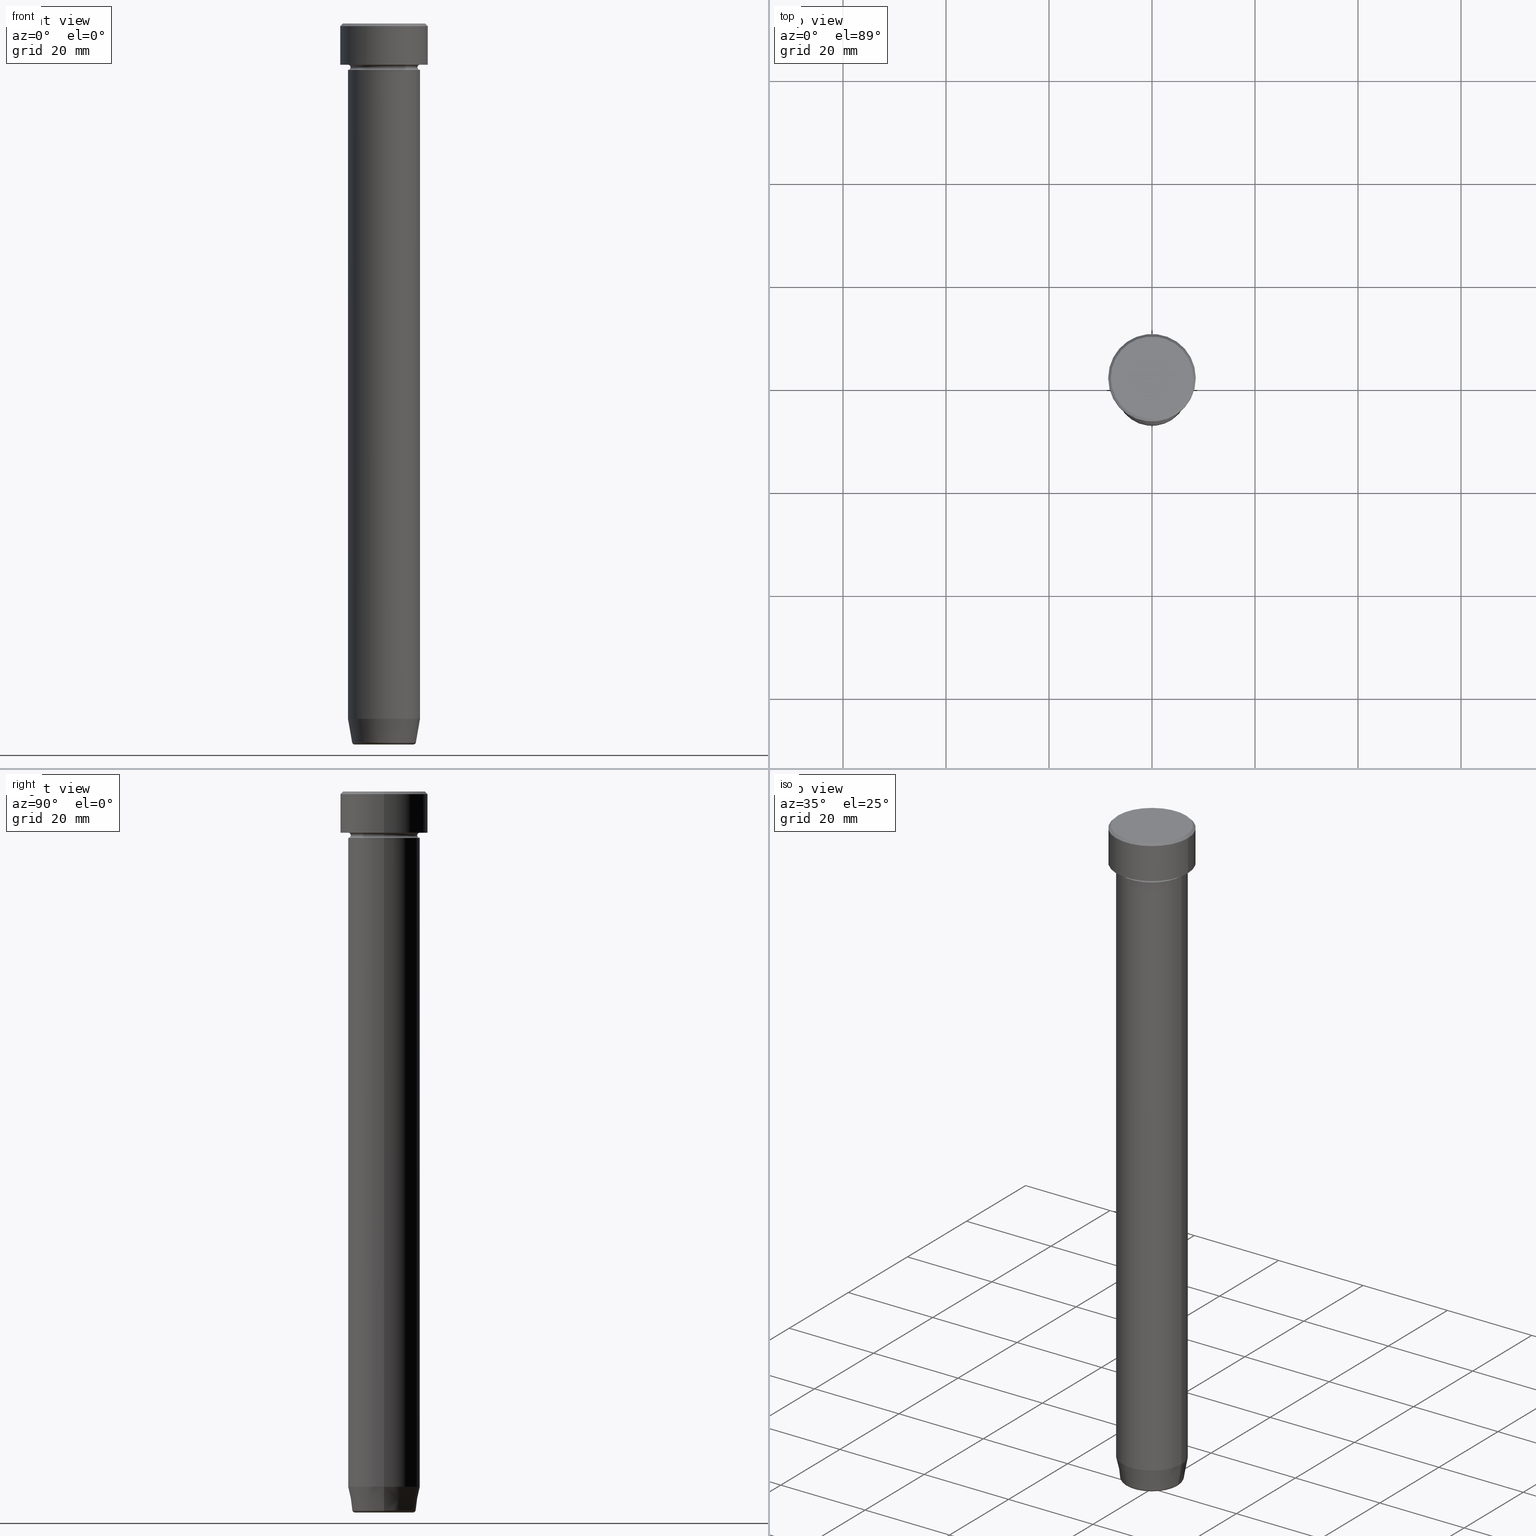
[diagram: canonical four-view strip — front | top / right | iso, engineering-drawing reading convention]
A machine part, canonical four-view strip (front | top / right | iso — engineering-drawing reading convention). The complete STEP part file that produces these views, byte-faithful:
ISO-10303-21;
HEADER;
FILE_DESCRIPTION (( 'STEP AP203' ),
    '1' );
FILE_NAME ('fa07.STEP',
    '2024-01-02T23:19:27',
    ( '' ),
    ( '' ),
    'SwSTEP 2.0',
    'SolidWorks 2019',
    '' );
FILE_SCHEMA (( 'CONFIG_CONTROL_DESIGN' ));
ENDSEC;

DATA;
#1 = CARTESIAN_POINT ( 'NONE',  ( 0.000000000000000000, 0.000000000000000000, -0.4999999999999987232 ) ) ;
#2 = COORDINATED_UNIVERSAL_TIME_OFFSET ( 1, 0, .AHEAD. ) ;
#3 = ORIENTED_EDGE ( 'NONE', *, *, #65, .F. ) ;
#4 = CARTESIAN_POINT ( 'NONE',  ( 8.500000000000000000, 0.000000000000000000, -8.000000000000000000 ) ) ;
#5 = ORIENTED_EDGE ( 'NONE', *, *, #293, .T. ) ;
#6 = CIRCLE ( 'NONE', #197, 6.500000000000000888 ) ;
#7 = DIRECTION ( 'NONE',  ( 1.000000000000000000, 0.000000000000000000, 0.000000000000000000 ) ) ;
#8 = AXIS2_PLACEMENT_3D ( 'NONE', #160, #349, #353 ) ;
#9 = ORIENTED_EDGE ( 'NONE', *, *, #134, .T. ) ;
#10 = CARTESIAN_POINT ( 'NONE',  ( 0.000000000000000000, 0.000000000000000000, -139.9999999999999716 ) ) ;
#11 = CARTESIAN_POINT ( 'NONE',  ( 0.000000000000000000, 0.000000000000000000, -22.00000000000000000 ) ) ;
#12 = APPROVAL ( #239, 'NEUR�EN�' ) ;
#13 = EDGE_LOOP ( 'NONE', ( #577, #456 ) ) ;
#14 = CARTESIAN_POINT ( 'NONE',  ( 7.000000000000000000, 0.000000000000000000, -9.000000000000001776 ) ) ;
#15 = AXIS2_PLACEMENT_3D ( 'NONE', #530, #149, #350 ) ;
#16 = PRODUCT_DEFINITION_FORMATION_WITH_SPECIFIED_SOURCE ( 'LIBOVOLN�', '', #211, .NOT_KNOWN. ) ;
#17 = VERTEX_POINT ( 'NONE', #201 ) ;
#18 = CARTESIAN_POINT ( 'NONE',  ( -5.698815280869040656, 7.280546308273771592E-16, -139.9999999999999716 ) ) ;
#19 = CARTESIAN_POINT ( 'NONE',  ( 7.000000000000000888, 8.572527594031474176E-16, -8.000000000000000000 ) ) ;
#20 = ORIENTED_EDGE ( 'NONE', *, *, #491, .T. ) ;
#21 = DIRECTION ( 'NONE',  ( -0.000000000000000000, -0.000000000000000000, 1.000000000000000000 ) ) ;
#22 = DIRECTION ( 'NONE',  ( -1.000000000000000000, 0.000000000000000000, 0.000000000000000000 ) ) ;
#23 = AXIS2_PLACEMENT_3D ( 'NONE', #318, #78, #228 ) ;
#24 = CONICAL_SURFACE ( 'NONE', #33, 6.118365096457679009, 0.1745329251994318653 ) ;
#25 = ORIENTED_EDGE ( 'NONE', *, *, #472, .F. ) ;
#26 = DIRECTION ( 'NONE',  ( -0.000000000000000000, -0.000000000000000000, 1.000000000000000000 ) ) ;
#27 = PERSON_AND_ORGANIZATION ( #163, #581 ) ;
#28 = CARTESIAN_POINT ( 'NONE',  ( 0.000000000000000000, 0.000000000000000000, -8.500000000000000000 ) ) ;
#29 = ADVANCED_FACE ( 'NONE', ( #296 ), #427, .F. ) ;
#30 = DIRECTION ( 'NONE',  ( 0.000000000000000000, 0.000000000000000000, -1.000000000000000000 ) ) ;
#31 = EDGE_CURVE ( 'NONE', #133, #563, #317, .T. ) ;
#32 = ORIENTED_EDGE ( 'NONE', *, *, #406, .F. ) ;
#33 = AXIS2_PLACEMENT_3D ( 'NONE', #582, #538, #101 ) ;
#34 = CYLINDRICAL_SURFACE ( 'NONE', #244, 6.999999999999999112 ) ;
#35 = EDGE_CURVE ( 'NONE', #527, #226, #125, .T. ) ;
#36 = ORIENTED_EDGE ( 'NONE', *, *, #235, .F. ) ;
#37 = DIRECTION ( 'NONE',  ( -0.000000000000000000, -0.000000000000000000, 1.000000000000000000 ) ) ;
#38 = DATE_AND_TIME ( #358, #108 ) ;
#39 = ORIENTED_EDGE ( 'NONE', *, *, #45, .F. ) ;
#40 = AXIS2_PLACEMENT_3D ( 'NONE', #433, #198, #525 ) ;
#41 = DATE_AND_TIME ( #121, #523 ) ;
#42 = FACE_OUTER_BOUND ( 'NONE', #474, .T. ) ;
#43 = APPROVAL_ROLE ( '' ) ;
#44 = DIRECTION ( 'NONE',  ( 0.000000000000000000, 0.000000000000000000, -1.000000000000000000 ) ) ;
#45 = EDGE_CURVE ( 'NONE', #527, #217, #520, .T. ) ;
#46 = AXIS2_PLACEMENT_3D ( 'NONE', #301, #63, #254 ) ;
#47 = AXIS2_PLACEMENT_3D ( 'NONE', #28, #37, #455 ) ;
#48 = CARTESIAN_POINT ( 'NONE',  ( -6.118365096457679009, 7.492836231391783526E-16, -139.9999999999999716 ) ) ;
#49 = CIRCLE ( 'NONE', #489, 7.000000000000000000 ) ;
#50 = EDGE_CURVE ( 'NONE', #586, #166, #70, .T. ) ;
#51 = CARTESIAN_POINT ( 'NONE',  ( -6.999999999999999112, 8.572527594031472204E-16, -22.00000000000000000 ) ) ;
#52 = EDGE_LOOP ( 'NONE', ( #405, #336 ) ) ;
#53 = CARTESIAN_POINT ( 'NONE',  ( 6.191219157375146942, 0.000000000000000000, -139.5868240888334526 ) ) ;
#54 = EDGE_CURVE ( 'NONE', #310, #264, #170, .T. ) ;
#55 = DIRECTION ( 'NONE',  ( 0.000000000000000000, -0.000000000000000000, 1.000000000000000000 ) ) ;
#56 = CARTESIAN_POINT ( 'NONE',  ( 0.000000000000000000, 0.000000000000000000, -22.00000000000000000 ) ) ;
#57 = DIRECTION ( 'NONE',  ( -0.000000000000000000, -0.000000000000000000, 1.000000000000000000 ) ) ;
#58 = CIRCLE ( 'NONE', #481, 0.5000000000000004441 ) ;
#59 = VECTOR ( 'NONE', #529, 1000.000000000000000 ) ;
#60 = EDGE_LOOP ( 'NONE', ( #589, #557, #412, #351 ) ) ;
#61 = CARTESIAN_POINT ( 'NONE',  ( 0.000000000000000000, 0.000000000000000000, -139.5868240888334526 ) ) ;
#62 = LINE ( 'NONE', #539, #279 ) ;
#63 = DIRECTION ( 'NONE',  ( -0.000000000000000000, -0.000000000000000000, 1.000000000000000000 ) ) ;
#64 = CC_DESIGN_PERSON_AND_ORGANIZATION_ASSIGNMENT ( #85, #282, ( #459 ) ) ;
#65 = EDGE_CURVE ( 'NONE', #541, #274, #145, .T. ) ;
#66 = CARTESIAN_POINT ( 'NONE',  ( 0.000000000000000000, 0.000000000000000000, 0.000000000000000000 ) ) ;
#67 = ORIENTED_EDGE ( 'NONE', *, *, #223, .F. ) ;
#68 = DIRECTION ( 'NONE',  ( 1.000000000000000000, 0.000000000000000000, 0.000000000000000000 ) ) ;
#69 = CARTESIAN_POINT ( 'NONE',  ( -7.000000000000000888, 0.000000000000000000, -8.500000000000000000 ) ) ;
#70 = CIRCLE ( 'NONE', #208, 5.698815280869040656 ) ;
#71 = CIRCLE ( 'NONE', #414, 6.999999999999999112 ) ;
#72 = CC_DESIGN_SECURITY_CLASSIFICATION ( #459, ( #16 ) ) ;
#73 = EDGE_CURVE ( 'NONE', #568, #278, #93, .T. ) ;
#74 = ORIENTED_EDGE ( 'NONE', *, *, #235, .T. ) ;
#75 = DIRECTION ( 'NONE',  ( 1.224646799147353207E-16, 1.000000000000000000, 0.000000000000000000 ) ) ;
#76 = ADVANCED_FACE ( 'NONE', ( #558 ), #566, .F. ) ;
#77 = EDGE_LOOP ( 'NONE', ( #86, #575, #385, #387 ) ) ;
#78 = DIRECTION ( 'NONE',  ( -0.000000000000000000, -0.000000000000000000, 1.000000000000000000 ) ) ;
#79 = AXIS2_PLACEMENT_3D ( 'NONE', #1, #190, #91 ) ;
#80 = ORIENTED_EDGE ( 'NONE', *, *, #475, .T. ) ;
#81 = CC_DESIGN_DATE_AND_TIME_ASSIGNMENT ( #464, #361, ( #459 ) ) ;
#82 = CARTESIAN_POINT ( 'NONE',  ( 0.000000000000000000, 0.000000000000000000, -139.9999999999999716 ) ) ;
#83 = APPLICATION_PROTOCOL_DEFINITION ( 'international standard', 'config_control_design', 1994, #96 ) ;
#84 = EDGE_LOOP ( 'NONE', ( #531, #430, #331, #555 ) ) ;
#85 = PERSON_AND_ORGANIZATION ( #163, #581 ) ;
#86 = ORIENTED_EDGE ( 'NONE', *, *, #407, .T. ) ;
#87 = AXIS2_PLACEMENT_3D ( 'NONE', #508, #131, #263 ) ;
#88 = DIRECTION ( 'NONE',  ( -0.000000000000000000, -0.000000000000000000, 1.000000000000000000 ) ) ;
#89 = SECURITY_CLASSIFICATION_LEVEL ( 'unclassified' ) ;
#90 = EDGE_LOOP ( 'NONE', ( #39, #291, #267, #67 ) ) ;
#91 = DIRECTION ( 'NONE',  ( 1.000000000000000000, 0.000000000000000000, 0.000000000000000000 ) ) ;
#92 = DIRECTION ( 'NONE',  ( -1.000000000000000000, 0.000000000000000000, 0.000000000000000000 ) ) ;
#93 = CIRCLE ( 'NONE', #126, 6.999999999999999112 ) ;
#94 = VECTOR ( 'NONE', #363, 1000.000000000000000 ) ;
#95 = DIRECTION ( 'NONE',  ( -1.000000000000000000, -1.224646799147351482E-16, 0.000000000000000000 ) ) ;
#96 = APPLICATION_CONTEXT ( 'configuration controlled 3d designs of mechanical parts and assemblies' ) ;
#97 = EDGE_LOOP ( 'NONE', ( #196, #480 ) ) ;
#98 = CARTESIAN_POINT ( 'NONE',  ( 6.118365096457679009, 0.000000000000000000, -139.9999999999999716 ) ) ;
#99 = DIRECTION ( 'NONE',  ( -0.000000000000000000, -0.000000000000000000, 1.000000000000000000 ) ) ;
#100 = EDGE_LOOP ( 'NONE', ( #492, #306 ) ) ;
#101 = DIRECTION ( 'NONE',  ( 1.000000000000000000, 0.000000000000000000, 0.000000000000000000 ) ) ;
#102 = FACE_OUTER_BOUND ( 'NONE', #52, .T. ) ;
#103 = ORIENTED_EDGE ( 'NONE', *, *, #471, .F. ) ;
#104 = CARTESIAN_POINT ( 'NONE',  ( 6.999999999999999112, 0.000000000000000000, -22.00000000000000000 ) ) ;
#105 = DIRECTION ( 'NONE',  ( -0.000000000000000000, -0.000000000000000000, 1.000000000000000000 ) ) ;
#106 = AXIS2_PLACEMENT_3D ( 'NONE', #483, #113, #156 ) ;
#107 = ADVANCED_FACE ( 'NONE', ( #334 ), #114, .F. ) ;
#108 = LOCAL_TIME ( 0, 19, 27.00000000000000000, #417 ) ;
#109 = EDGE_LOOP ( 'NONE', ( #323, #32, #20, #249 ) ) ;
#110 = DIRECTION ( 'NONE',  ( 1.000000000000000000, 0.000000000000000000, 0.000000000000000000 ) ) ;
#111 = CARTESIAN_POINT ( 'NONE',  ( -6.999999999999999112, 8.572527594031472204E-16, -22.00000000000000000 ) ) ;
#112 = CARTESIAN_POINT ( 'NONE',  ( 0.000000000000000000, 0.000000000000000000, -134.9999999999999716 ) ) ;
#113 = DIRECTION ( 'NONE',  ( 0.000000000000000000, 0.000000000000000000, -1.000000000000000000 ) ) ;
#114 = TOROIDAL_SURFACE ( 'NONE', #321, 7.000000000000000888, 0.5000000000000000000 ) ;
#115 = AXIS2_PLACEMENT_3D ( 'NONE', #178, #457, #544 ) ;
#116 = ORIENTED_EDGE ( 'NONE', *, *, #205, .F. ) ;
#117 = APPROVAL_DATE_TIME ( #38, #175 ) ;
#118 = LINE ( 'NONE', #230, #144 ) ;
#119 = EDGE_CURVE ( 'NONE', #274, #133, #195, .T. ) ;
#120 = EDGE_LOOP ( 'NONE', ( #150, #438, #505, #560 ) ) ;
#121 = CALENDAR_DATE ( 2024, 3, 1 ) ;
#122 = CARTESIAN_POINT ( 'NONE',  ( -6.500000000000000888, 8.266365894244635319E-16, -8.500000000000000000 ) ) ;
#123 = VERTEX_POINT ( 'NONE', #53 ) ;
#124 = DIRECTION ( 'NONE',  ( 0.000000000000000000, 0.000000000000000000, -1.000000000000000000 ) ) ;
#125 = CIRCLE ( 'NONE', #467, 0.5000000000000004441 ) ;
#126 = AXIS2_PLACEMENT_3D ( 'NONE', #375, #384, #423 ) ;
#127 = CIRCLE ( 'NONE', #8, 8.500000000000000000 ) ;
#128 = EDGE_CURVE ( 'NONE', #123, #541, #269, .T. ) ;
#129 = FACE_OUTER_BOUND ( 'NONE', #565, .T. ) ;
#130 = ORIENTED_EDGE ( 'NONE', *, *, #418, .F. ) ;
#131 = DIRECTION ( 'NONE',  ( -0.000000000000000000, -0.000000000000000000, 1.000000000000000000 ) ) ;
#132 = CALENDAR_DATE ( 2024, 3, 1 ) ;
#133 = VERTEX_POINT ( 'NONE', #51 ) ;
#134 = EDGE_CURVE ( 'NONE', #421, #571, #449, .T. ) ;
#135 = DIRECTION ( 'NONE',  ( 1.000000000000000000, 0.000000000000000000, 0.000000000000000000 ) ) ;
#136 = CIRCLE ( 'NONE', #458, 8.500000000000000000 ) ;
#137 = AXIS2_PLACEMENT_3D ( 'NONE', #409, #411, #370 ) ;
#138 = ADVANCED_FACE ( 'NONE', ( #521 ), #561, .F. ) ;
#139 = CARTESIAN_POINT ( 'NONE',  ( 0.000000000000000000, 0.000000000000000000, -139.5868240888334526 ) ) ;
#140 = CC_DESIGN_PERSON_AND_ORGANIZATION_ASSIGNMENT ( #587, #460, ( #517 ) ) ;
#141 = ORIENTED_EDGE ( 'NONE', *, *, #167, .F. ) ;
#142 = DIRECTION ( 'NONE',  ( -1.224646799147353207E-16, 1.000000000000000000, 0.000000000000000000 ) ) ;
#143 = CIRCLE ( 'NONE', #420, 8.000000000000000000 ) ;
#144 = VECTOR ( 'NONE', #268, 1000.000000000000000 ) ;
#145 = LINE ( 'NONE', #48, #428 ) ;
#146 = ORIENTED_EDGE ( 'NONE', *, *, #471, .T. ) ;
#147 = ORIENTED_EDGE ( 'NONE', *, *, #554, .T. ) ;
#148 = CARTESIAN_POINT ( 'NONE',  ( 8.500000000000000000, 0.000000000000000000, -0.4999999999999987232 ) ) ;
#149 = DIRECTION ( 'NONE',  ( 0.000000000000000000, 0.000000000000000000, -1.000000000000000000 ) ) ;
#150 = ORIENTED_EDGE ( 'NONE', *, *, #205, .T. ) ;
#151 =( NAMED_UNIT ( * ) PLANE_ANGLE_UNIT ( ) SI_UNIT ( $, .RADIAN. ) );
#152 = DIRECTION ( 'NONE',  ( 0.000000000000000000, 0.000000000000000000, -1.000000000000000000 ) ) ;
#153 = CARTESIAN_POINT ( 'NONE',  ( 0.000000000000000000, 1.102182119232617911E-14, -139.9999999999999716 ) ) ;
#154 = CARTESIAN_POINT ( 'NONE',  ( 6.500000000000000888, 0.000000000000000000, -8.500000000000000000 ) ) ;
#155 = ADVANCED_FACE ( 'NONE', ( #328 ), #468, .T. ) ;
#156 = DIRECTION ( 'NONE',  ( -1.000000000000000000, 0.000000000000000000, -0.000000000000000000 ) ) ;
#157 = AXIS2_PLACEMENT_3D ( 'NONE', #69, #441, #259 ) ;
#158 = CONICAL_SURFACE ( 'NONE', #400, 6.118365096457679009, 0.1745329251994318653 ) ;
#159 = UNCERTAINTY_MEASURE_WITH_UNIT (LENGTH_MEASURE( 1.000000000000000082E-05 ), #393, 'distance_accuracy_value', 'NONE');
#160 = CARTESIAN_POINT ( 'NONE',  ( 0.000000000000000000, 0.000000000000000000, -8.000000000000000000 ) ) ;
#161 = FACE_OUTER_BOUND ( 'NONE', #240, .T. ) ;
#162 = EDGE_CURVE ( 'NONE', #527, #452, #6, .T. ) ;
#163 = PERSON ( 'NEUR�EN�', 'NEUR�EN�', 'NEUR�EN�', ('NEUR�EN�'), ('NEUR�EN�'), ('NEUR�EN�') ) ;
#164 = ORIENTED_EDGE ( 'NONE', *, *, #193, .T. ) ;
#165 = CARTESIAN_POINT ( 'NONE',  ( 0.000000000000000000, 0.000000000000000000, 0.000000000000000000 ) ) ;
#166 = VERTEX_POINT ( 'NONE', #290 ) ;
#167 = EDGE_CURVE ( 'NONE', #274, #17, #488, .T. ) ;
#168 = PERSON_AND_ORGANIZATION_ROLE ( 'design_supplier' ) ;
#169 = CARTESIAN_POINT ( 'NONE',  ( 6.999999999999999112, 0.000000000000000000, 0.000000000000000000 ) ) ;
#170 = CIRCLE ( 'NONE', #371, 8.000000000000000000 ) ;
#171 = MECHANICAL_CONTEXT ( 'NONE', #519, 'mechanical' ) ;
#172 = CARTESIAN_POINT ( 'NONE',  ( -7.000000000000000888, 8.572527594031474176E-16, -9.000000000000001776 ) ) ;
#173 = ORIENTED_EDGE ( 'NONE', *, *, #584, .F. ) ;
#174 = CARTESIAN_POINT ( 'NONE',  ( -8.000000000000000000, 0.000000000000000000, 0.000000000000000000 ) ) ;
#175 = APPROVAL ( #183, 'NEUR�EN�' ) ;
#176 = EDGE_CURVE ( 'NONE', #278, #226, #511, .T. ) ;
#177 = EDGE_LOOP ( 'NONE', ( #3, #507, #146, #141 ) ) ;
#178 = CARTESIAN_POINT ( 'NONE',  ( 0.000000000000000000, 8.500000000000000000, -8.000000000000000000 ) ) ;
#179 = CLOSED_SHELL ( 'NONE', ( #284, #107, #319, #454, #271, #285, #155, #389, #431, #295, #500, #138, #335 ) ) ;
#180 = AXIS2_PLACEMENT_3D ( 'NONE', #289, #246, #283 ) ;
#181 = APPROVAL_PERSON_ORGANIZATION ( #27, #243, #311 ) ;
#182 = DIRECTION ( 'NONE',  ( 1.000000000000000000, 0.000000000000000000, 0.000000000000000000 ) ) ;
#183 = APPROVAL_STATUS ( 'not_yet_approved' ) ;
#184 = ADVANCED_FACE ( 'NONE', ( #42 ), #580, .T. ) ;
#185 = CARTESIAN_POINT ( 'NONE',  ( 6.999999999999999112, 0.000000000000000000, 0.000000000000000000 ) ) ;
#186 = DATE_AND_TIME ( #374, #288 ) ;
#187 = VERTEX_POINT ( 'NONE', #4 ) ;
#188 = VECTOR ( 'NONE', #540, 1000.000000000000000 ) ;
#189 = LOCAL_TIME ( 0, 19, 27.00000000000000000, #376 ) ;
#190 = DIRECTION ( 'NONE',  ( 0.000000000000000000, 0.000000000000000000, -1.000000000000000000 ) ) ;
#191 = ORIENTED_EDGE ( 'NONE', *, *, #73, .T. ) ;
#192 = DIRECTION ( 'NONE',  ( -0.000000000000000000, -0.000000000000000000, 1.000000000000000000 ) ) ;
#193 = EDGE_CURVE ( 'NONE', #304, #217, #522, .T. ) ;
#194 = EDGE_LOOP ( 'NONE', ( #147, #5, #345, #484 ) ) ;
#195 = LINE ( 'NONE', #241, #469 ) ;
#196 = ORIENTED_EDGE ( 'NONE', *, *, #54, .T. ) ;
#197 = AXIS2_PLACEMENT_3D ( 'NONE', #286, #466, #7 ) ;
#198 = DIRECTION ( 'NONE',  ( -0.000000000000000000, -0.000000000000000000, 1.000000000000000000 ) ) ;
#199 = CIRCLE ( 'NONE', #47, 6.500000000000000888 ) ;
#200 = DIRECTION ( 'NONE',  ( -1.000000000000000000, 0.000000000000000000, 0.000000000000000000 ) ) ;
#201 = CARTESIAN_POINT ( 'NONE',  ( 6.999999999999999112, 0.000000000000000000, -134.9999999999999716 ) ) ;
#202 = ADVANCED_FACE ( 'NONE', ( #300 ), #294, .T. ) ;
#203 = CARTESIAN_POINT ( 'NONE',  ( 0.000000000000000000, 0.000000000000000000, -8.000000000000000000 ) ) ;
#204 = EDGE_LOOP ( 'NONE', ( #280, #348, #9, #36 ) ) ;
#205 = EDGE_CURVE ( 'NONE', #17, #274, #570, .T. ) ;
#206 = DIRECTION ( 'NONE',  ( 1.000000000000000000, 0.000000000000000000, 0.000000000000000000 ) ) ;
#207 = DIRECTION ( 'NONE',  ( -1.000000000000000000, 0.000000000000000000, 0.000000000000000000 ) ) ;
#208 = AXIS2_PLACEMENT_3D ( 'NONE', #10, #44, #135 ) ;
#209 = CARTESIAN_POINT ( 'NONE',  ( 8.000000000000000000, 1.010333609296566550E-15, 0.000000000000000000 ) ) ;
#210 = AXIS2_PLACEMENT_3D ( 'NONE', #399, #578, #486 ) ;
#211 = PRODUCT ( 'fa07', 'fa07', '', ( #171 ) ) ;
#212 = CARTESIAN_POINT ( 'NONE',  ( 0.000000000000000000, 0.000000000000000000, -9.000000000000001776 ) ) ;
#213 = DIRECTION ( 'NONE',  ( 1.000000000000000000, 0.000000000000000000, 0.000000000000000000 ) ) ;
#214 = EDGE_CURVE ( 'NONE', #563, #133, #71, .T. ) ;
#215 = APPROVAL_DATE_TIME ( #41, #243 ) ;
#216 = CARTESIAN_POINT ( 'NONE',  ( -8.000000000000000000, 0.000000000000000000, 0.000000000000000000 ) ) ;
#217 = VERTEX_POINT ( 'NONE', #19 ) ;
#218 = DIRECTION ( 'NONE',  ( 0.000000000000000000, 0.000000000000000000, 1.000000000000000000 ) ) ;
#219 = DIRECTION ( 'NONE',  ( 0.7071067811865487940, 8.659560562354950115E-17, -0.7071067811865463515 ) ) ;
#220 = AXIS2_PLACEMENT_3D ( 'NONE', #238, #416, #213 ) ;
#221 = AXIS2_PLACEMENT_3D ( 'NONE', #450, #124, #549 ) ;
#222 = ORIENTED_EDGE ( 'NONE', *, *, #355, .T. ) ;
#223 = EDGE_CURVE ( 'NONE', #217, #304, #297, .T. ) ;
#224 = CARTESIAN_POINT ( 'NONE',  ( -7.000000000000000888, 0.000000000000000000, -8.000000000000000000 ) ) ;
#225 = DESIGN_CONTEXT ( 'detailed design', #96, 'design' ) ;
#226 = VERTEX_POINT ( 'NONE', #14 ) ;
#227 = EDGE_CURVE ( 'NONE', #571, #421, #136, .T. ) ;
#228 = DIRECTION ( 'NONE',  ( 1.000000000000000000, 0.000000000000000000, 0.000000000000000000 ) ) ;
#229 = ORIENTED_EDGE ( 'NONE', *, *, #134, .F. ) ;
#230 = CARTESIAN_POINT ( 'NONE',  ( -8.500000000000000000, 1.040949779275250140E-15, 0.000000000000000000 ) ) ;
#231 = AXIS2_PLACEMENT_3D ( 'NONE', #11, #419, #564 ) ;
#232 = COORDINATED_UNIVERSAL_TIME_OFFSET ( 1, 0, .AHEAD. ) ;
#233 = ORIENTED_EDGE ( 'NONE', *, *, #227, .T. ) ;
#234 = APPROVAL_PERSON_ORGANIZATION ( #262, #12, #43 ) ;
#235 = EDGE_CURVE ( 'NONE', #187, #571, #487, .T. ) ;
#236 = PERSON_AND_ORGANIZATION ( #163, #581 ) ;
#237 = ADVANCED_FACE ( 'NONE', ( #479 ), #394, .T. ) ;
#238 = CARTESIAN_POINT ( 'NONE',  ( 0.000000000000000000, 0.000000000000000000, -139.4999999999999716 ) ) ;
#239 = APPROVAL_STATUS ( 'not_yet_approved' ) ;
#240 = EDGE_LOOP ( 'NONE', ( #392, #222, #229, #130 ) ) ;
#241 = CARTESIAN_POINT ( 'NONE',  ( -6.999999999999999112, 8.572527594031472204E-16, 0.000000000000000000 ) ) ;
#242 = CLOSED_SHELL ( 'NONE', ( #184, #567, #202, #76, #237, #382, #29, #261 ) ) ;
#243 = APPROVAL ( #446, 'NEUR�EN�' ) ;
#244 = AXIS2_PLACEMENT_3D ( 'NONE', #462, #332, #381 ) ;
#245 = DIRECTION ( 'NONE',  ( -0.000000000000000000, -0.000000000000000000, 1.000000000000000000 ) ) ;
#246 = DIRECTION ( 'NONE',  ( 0.000000000000000000, -0.000000000000000000, 1.000000000000000000 ) ) ;
#247 = EDGE_LOOP ( 'NONE', ( #501, #325, #116, #103 ) ) ;
#248 = CARTESIAN_POINT ( 'NONE',  ( 0.000000000000000000, 0.000000000000000000, -8.500000000000000000 ) ) ;
#249 = ORIENTED_EDGE ( 'NONE', *, *, #518, .F. ) ;
#250 = FACE_OUTER_BOUND ( 'NONE', #247, .T. ) ;
#251 = CARTESIAN_POINT ( 'NONE',  ( 0.000000000000000000, 0.000000000000000000, 0.000000000000000000 ) ) ;
#252 = ORIENTED_EDGE ( 'NONE', *, *, #338, .F. ) ;
#253 = DIRECTION ( 'NONE',  ( 1.000000000000000000, 0.000000000000000000, 0.000000000000000000 ) ) ;
#254 = DIRECTION ( 'NONE',  ( 1.000000000000000000, 0.000000000000000000, 0.000000000000000000 ) ) ;
#255 = EDGE_CURVE ( 'NONE', #264, #310, #143, .T. ) ;
#256 = DIRECTION ( 'NONE',  ( 1.000000000000000000, 0.000000000000000000, 0.000000000000000000 ) ) ;
#257 = EDGE_CURVE ( 'NONE', #452, #304, #542, .T. ) ;
#258 = AXIS2_PLACEMENT_3D ( 'NONE', #139, #99, #339 ) ;
#259 = DIRECTION ( 'NONE',  ( 0.000000000000000000, 0.000000000000000000, -1.000000000000000000 ) ) ;
#260 = CC_DESIGN_APPROVAL ( #243, ( #459 ) ) ;
#261 = ADVANCED_FACE ( 'NONE', ( #576 ), #287, .T. ) ;
#262 = PERSON_AND_ORGANIZATION ( #163, #581 ) ;
#263 = DIRECTION ( 'NONE',  ( 1.000000000000000000, 0.000000000000000000, 0.000000000000000000 ) ) ;
#264 = VERTEX_POINT ( 'NONE', #209 ) ;
#265 = APPLICATION_PROTOCOL_DEFINITION ( 'international standard', 'config_control_design', 1994, #519 ) ;
#266 = FACE_OUTER_BOUND ( 'NONE', #425, .T. ) ;
#267 = ORIENTED_EDGE ( 'NONE', *, *, #257, .T. ) ;
#268 = DIRECTION ( 'NONE',  ( -0.000000000000000000, -0.000000000000000000, 1.000000000000000000 ) ) ;
#269 = CIRCLE ( 'NONE', #258, 6.191219157375146054 ) ;
#270 = AXIS2_PLACEMENT_3D ( 'NONE', #61, #390, #207 ) ;
#271 = ADVANCED_FACE ( 'NONE', ( #437 ), #490, .T. ) ;
#272 = EDGE_LOOP ( 'NONE', ( #548, #191, #344, #313 ) ) ;
#273 = CYLINDRICAL_SURFACE ( 'NONE', #137, 8.500000000000000000 ) ;
#274 = VERTEX_POINT ( 'NONE', #426 ) ;
#275 = CC_DESIGN_PERSON_AND_ORGANIZATION_ASSIGNMENT ( #498, #592, ( #211 ) ) ;
#276 = LINE ( 'NONE', #216, #94 ) ;
#277 = DIRECTION ( 'NONE',  ( 1.000000000000000000, 0.000000000000000000, 0.000000000000000000 ) ) ;
#278 = VERTEX_POINT ( 'NONE', #401 ) ;
#279 = VECTOR ( 'NONE', #354, 1000.000000000000000 ) ;
#280 = ORIENTED_EDGE ( 'NONE', *, *, #472, .T. ) ;
#281 = CIRCLE ( 'NONE', #221, 5.698815280869040656 ) ;
#282 = PERSON_AND_ORGANIZATION_ROLE ( 'classification_officer' ) ;
#283 = DIRECTION ( 'NONE',  ( 1.000000000000000000, 0.000000000000000000, 0.000000000000000000 ) ) ;
#284 = ADVANCED_FACE ( 'NONE', ( #161 ), #408, .T. ) ;
#285 = ADVANCED_FACE ( 'NONE', ( #102 ), #359, .T. ) ;
#286 = CARTESIAN_POINT ( 'NONE',  ( 0.000000000000000000, 0.000000000000000000, -8.500000000000000000 ) ) ;
#287 = TOROIDAL_SURFACE ( 'NONE', #307, 5.698815280869040656, 0.5000000000000000000 ) ;
#288 = LOCAL_TIME ( 0, 19, 27.00000000000000000, #2 ) ;
#289 = CARTESIAN_POINT ( 'NONE',  ( 0.000000000000000000, 0.000000000000000000, 0.000000000000000000 ) ) ;
#290 = CARTESIAN_POINT ( 'NONE',  ( 5.698815280869040656, 0.000000000000000000, -139.9999999999999716 ) ) ;
#291 = ORIENTED_EDGE ( 'NONE', *, *, #162, .T. ) ;
#292 = DIRECTION ( 'NONE',  ( -0.000000000000000000, -0.000000000000000000, 1.000000000000000000 ) ) ;
#293 = EDGE_CURVE ( 'NONE', #568, #369, #62, .T. ) ;
#294 = CYLINDRICAL_SURFACE ( 'NONE', #597, 6.999999999999999112 ) ;
#295 = ADVANCED_FACE ( 'NONE', ( #537 ), #434, .T. ) ;
#296 = FACE_OUTER_BOUND ( 'NONE', #100, .T. ) ;
#297 = CIRCLE ( 'NONE', #550, 7.000000000000000888 ) ;
#298 =( NAMED_UNIT ( * ) SI_UNIT ( $, .STERADIAN. ) SOLID_ANGLE_UNIT ( ) );
#299 = AXIS2_PLACEMENT_3D ( 'NONE', #56, #573, #68 ) ;
#300 = FACE_OUTER_BOUND ( 'NONE', #120, .T. ) ;
#301 = CARTESIAN_POINT ( 'NONE',  ( 0.000000000000000000, 0.000000000000000000, -22.00000000000000000 ) ) ;
#302 = LINE ( 'NONE', #98, #59 ) ;
#303 = DIRECTION ( 'NONE',  ( -0.000000000000000000, -0.000000000000000000, 1.000000000000000000 ) ) ;
#304 = VERTEX_POINT ( 'NONE', #224 ) ;
#305 = CARTESIAN_POINT ( 'NONE',  ( 0.000000000000000000, 0.000000000000000000, 0.000000000000000000 ) ) ;
#306 = ORIENTED_EDGE ( 'NONE', *, *, #50, .T. ) ;
#307 = AXIS2_PLACEMENT_3D ( 'NONE', #585, #26, #308 ) ;
#308 = DIRECTION ( 'NONE',  ( 1.000000000000000000, 0.000000000000000000, 0.000000000000000000 ) ) ;
#309 = TOROIDAL_SURFACE ( 'NONE', #40, 7.000000000000000888, 0.5000000000000000000 ) ;
#310 = VERTEX_POINT ( 'NONE', #174 ) ;
#311 = APPROVAL_ROLE ( '' ) ;
#312 = CARTESIAN_POINT ( 'NONE',  ( 0.000000000000000000, 0.000000000000000000, 0.000000000000000000 ) ) ;
#313 = ORIENTED_EDGE ( 'NONE', *, *, #442, .F. ) ;
#314 = SHAPE_DEFINITION_REPRESENTATION ( #515, #524 ) ;
#315 = DIRECTION ( 'NONE',  ( -0.000000000000000000, -0.000000000000000000, 1.000000000000000000 ) ) ;
#316 = ORIENTED_EDGE ( 'NONE', *, *, #338, .T. ) ;
#317 = CIRCLE ( 'NONE', #46, 6.999999999999999112 ) ;
#318 = CARTESIAN_POINT ( 'NONE',  ( 0.000000000000000000, 0.000000000000000000, 0.000000000000000000 ) ) ;
#319 = ADVANCED_FACE ( 'NONE', ( #266 ), #362, .F. ) ;
#320 = AXIS2_PLACEMENT_3D ( 'NONE', #66, #574, #256 ) ;
#321 = AXIS2_PLACEMENT_3D ( 'NONE', #248, #526, #92 ) ;
#322 = CIRCLE ( 'NONE', #415, 7.000000000000000000 ) ;
#323 = ORIENTED_EDGE ( 'NONE', *, *, #445, .F. ) ;
#324 = CARTESIAN_POINT ( 'NONE',  ( -7.000000000000000888, 8.572527594031474176E-16, -8.500000000000000000 ) ) ;
#325 = ORIENTED_EDGE ( 'NONE', *, *, #65, .T. ) ;
#326 = LINE ( 'NONE', #552, #379 ) ;
#327 = PERSON_AND_ORGANIZATION_ROLE ( 'creator' ) ;
#328 = FACE_OUTER_BOUND ( 'NONE', #97, .T. ) ;
#329 = AXIS2_PLACEMENT_3D ( 'NONE', #312, #30, #413 ) ;
#330 = DATE_TIME_ROLE ( 'creation_date' ) ;
#331 = ORIENTED_EDGE ( 'NONE', *, *, #333, .T. ) ;
#332 = DIRECTION ( 'NONE',  ( -0.000000000000000000, -0.000000000000000000, 1.000000000000000000 ) ) ;
#333 = EDGE_CURVE ( 'NONE', #17, #563, #506, .T. ) ;
#334 = FACE_OUTER_BOUND ( 'NONE', #77, .T. ) ;
#335 = ADVANCED_FACE ( 'NONE', ( #410 ), #590, .T. ) ;
#336 = ORIENTED_EDGE ( 'NONE', *, *, #73, .F. ) ;
#337 = DIRECTION ( 'NONE',  ( -1.000000000000000000, 0.000000000000000000, 0.000000000000000000 ) ) ;
#338 = EDGE_CURVE ( 'NONE', #452, #369, #58, .T. ) ;
#339 = DIRECTION ( 'NONE',  ( -1.000000000000000000, 0.000000000000000000, 0.000000000000000000 ) ) ;
#340 = EDGE_LOOP ( 'NONE', ( #164, #545 ) ) ;
#341 = AXIS2_PLACEMENT_3D ( 'NONE', #112, #303, #583 ) ;
#342 = CIRCLE ( 'NONE', #398, 0.5000000000000004441 ) ;
#343 = DIRECTION ( 'NONE',  ( -0.1736481776669292765, 2.126576849575758356E-17, 0.9848077530122082424 ) ) ;
#344 = ORIENTED_EDGE ( 'NONE', *, *, #176, .T. ) ;
#345 = ORIENTED_EDGE ( 'NONE', *, *, #475, .F. ) ;
#346 = CARTESIAN_POINT ( 'NONE',  ( 0.000000000000000000, 0.000000000000000000, -8.000000000000000000 ) ) ;
#347 = DIRECTION ( 'NONE',  ( -0.000000000000000000, -0.000000000000000000, 1.000000000000000000 ) ) ;
#348 = ORIENTED_EDGE ( 'NONE', *, *, #432, .T. ) ;
#349 = DIRECTION ( 'NONE',  ( -0.000000000000000000, -0.000000000000000000, 1.000000000000000000 ) ) ;
#350 = DIRECTION ( 'NONE',  ( -1.000000000000000000, 0.000000000000000000, 0.000000000000000000 ) ) ;
#351 = ORIENTED_EDGE ( 'NONE', *, *, #227, .F. ) ;
#352 = VECTOR ( 'NONE', #88, 1000.000000000000000 ) ;
#353 = DIRECTION ( 'NONE',  ( 1.000000000000000000, 0.000000000000000000, 0.000000000000000000 ) ) ;
#354 = DIRECTION ( 'NONE',  ( -0.000000000000000000, -0.000000000000000000, 1.000000000000000000 ) ) ;
#355 = EDGE_CURVE ( 'NONE', #264, #571, #326, .T. ) ;
#356 = DIRECTION ( 'NONE',  ( -0.000000000000000000, -0.000000000000000000, 1.000000000000000000 ) ) ;
#357 = CARTESIAN_POINT ( 'NONE',  ( 0.000000000000000000, 0.000000000000000000, -0.4999999999999987232 ) ) ;
#358 = CALENDAR_DATE ( 2024, 3, 1 ) ;
#359 = PLANE ( 'NONE',  #106 ) ;
#360 = ORIENTED_EDGE ( 'NONE', *, *, #35, .T. ) ;
#361 = DATE_TIME_ROLE ( 'classification_date' ) ;
#362 = TOROIDAL_SURFACE ( 'NONE', #87, 7.000000000000000888, 0.5000000000000000000 ) ;
#363 = DIRECTION ( 'NONE',  ( -0.7071067811865487940, 0.000000000000000000, -0.7071067811865463515 ) ) ;
#364 = ORIENTED_EDGE ( 'NONE', *, *, #432, .F. ) ;
#365 = APPROVAL_DATE_TIME ( #186, #12 ) ;
#366 = DIRECTION ( 'NONE',  ( 1.000000000000000000, 0.000000000000000000, 0.000000000000000000 ) ) ;
#367 = VERTEX_POINT ( 'NONE', #444 ) ;
#368 = DIRECTION ( 'NONE',  ( -0.000000000000000000, -0.000000000000000000, 1.000000000000000000 ) ) ;
#369 = VERTEX_POINT ( 'NONE', #172 ) ;
#370 = DIRECTION ( 'NONE',  ( 1.000000000000000000, 0.000000000000000000, 0.000000000000000000 ) ) ;
#371 = AXIS2_PLACEMENT_3D ( 'NONE', #569, #245, #386 ) ;
#372 = CC_DESIGN_APPROVAL ( #175, ( #16 ) ) ;
#373 = CARTESIAN_POINT ( 'NONE',  ( -5.698815280869040656, 6.979035892648295646E-16, -139.4999999999999716 ) ) ;
#374 = CALENDAR_DATE ( 2024, 3, 1 ) ;
#375 = CARTESIAN_POINT ( 'NONE',  ( 0.000000000000000000, 0.000000000000000000, -22.00000000000000000 ) ) ;
#376 = COORDINATED_UNIVERSAL_TIME_OFFSET ( 1, 0, .AHEAD. ) ;
#377 = ORIENTED_EDGE ( 'NONE', *, *, #407, .F. ) ;
#378 = DIRECTION ( 'NONE',  ( 0.000000000000000000, 0.000000000000000000, -1.000000000000000000 ) ) ;
#379 = VECTOR ( 'NONE', #219, 1000.000000000000000 ) ;
#380 = APPROVAL_PERSON_ORGANIZATION ( #513, #175, #546 ) ;
#381 = DIRECTION ( 'NONE',  ( 1.000000000000000000, 0.000000000000000000, 0.000000000000000000 ) ) ;
#382 = ADVANCED_FACE ( 'NONE', ( #494 ), #158, .T. ) ;
#383 = CARTESIAN_POINT ( 'NONE',  ( 0.000000000000000000, 0.000000000000000000, -134.9999999999999716 ) ) ;
#384 = DIRECTION ( 'NONE',  ( -0.000000000000000000, -0.000000000000000000, 1.000000000000000000 ) ) ;
#385 = ORIENTED_EDGE ( 'NONE', *, *, #193, .F. ) ;
#386 = DIRECTION ( 'NONE',  ( 1.000000000000000000, 0.000000000000000000, 0.000000000000000000 ) ) ;
#387 = ORIENTED_EDGE ( 'NONE', *, *, #257, .F. ) ;
#388 = CC_DESIGN_APPROVAL ( #12, ( #517 ) ) ;
#389 = ADVANCED_FACE ( 'NONE', ( #129 ), #273, .T. ) ;
#390 = DIRECTION ( 'NONE',  ( -0.000000000000000000, -0.000000000000000000, 1.000000000000000000 ) ) ;
#391 = DIRECTION ( 'NONE',  ( 1.000000000000000000, 0.000000000000000000, 0.000000000000000000 ) ) ;
#392 = ORIENTED_EDGE ( 'NONE', *, *, #255, .F. ) ;
#393 =( LENGTH_UNIT ( ) NAMED_UNIT ( * ) SI_UNIT ( .MILLI., .METRE. ) );
#394 = CYLINDRICAL_SURFACE ( 'NONE', #320, 6.999999999999999112 ) ;
#395 = ORIENTED_EDGE ( 'NONE', *, *, #35, .F. ) ;
#396 = DIRECTION ( 'NONE',  ( 1.000000000000000000, 0.000000000000000000, 0.000000000000000000 ) ) ;
#397 = AXIS2_PLACEMENT_3D ( 'NONE', #165, #347, #110 ) ;
#398 = AXIS2_PLACEMENT_3D ( 'NONE', #373, #75, #593 ) ;
#399 = CARTESIAN_POINT ( 'NONE',  ( 5.698815280869040656, 0.000000000000000000, -139.4999999999999716 ) ) ;
#400 = AXIS2_PLACEMENT_3D ( 'NONE', #82, #368, #366 ) ;
#401 = CARTESIAN_POINT ( 'NONE',  ( 6.999999999999999112, 0.000000000000000000, -22.00000000000000000 ) ) ;
#402 = CARTESIAN_POINT ( 'NONE',  ( 8.500000000000000000, 0.000000000000000000, 0.000000000000000000 ) ) ;
#403 = ORIENTED_EDGE ( 'NONE', *, *, #128, .F. ) ;
#404 = FACE_BOUND ( 'NONE', #340, .T. ) ;
#405 = ORIENTED_EDGE ( 'NONE', *, *, #554, .F. ) ;
#406 = EDGE_CURVE ( 'NONE', #166, #586, #281, .T. ) ;
#407 = EDGE_CURVE ( 'NONE', #452, #527, #199, .T. ) ;
#408 = CONICAL_SURFACE ( 'NONE', #15, 8.000000000000000000, 0.7853981633974500554 ) ;
#409 = CARTESIAN_POINT ( 'NONE',  ( 0.000000000000000000, 0.000000000000000000, 0.000000000000000000 ) ) ;
#410 = FACE_OUTER_BOUND ( 'NONE', #60, .T. ) ;
#411 = DIRECTION ( 'NONE',  ( -0.000000000000000000, -0.000000000000000000, 1.000000000000000000 ) ) ;
#412 = ORIENTED_EDGE ( 'NONE', *, *, #418, .T. ) ;
#413 = DIRECTION ( 'NONE',  ( -1.000000000000000000, 0.000000000000000000, 0.000000000000000000 ) ) ;
#414 = AXIS2_PLACEMENT_3D ( 'NONE', #429, #105, #206 ) ;
#415 = AXIS2_PLACEMENT_3D ( 'NONE', #556, #599, #182 ) ;
#416 = DIRECTION ( 'NONE',  ( -0.000000000000000000, -0.000000000000000000, 1.000000000000000000 ) ) ;
#417 = COORDINATED_UNIVERSAL_TIME_OFFSET ( 1, 0, .AHEAD. ) ;
#418 = EDGE_CURVE ( 'NONE', #310, #421, #276, .T. ) ;
#419 = DIRECTION ( 'NONE',  ( 0.000000000000000000, 0.000000000000000000, -1.000000000000000000 ) ) ;
#420 = AXIS2_PLACEMENT_3D ( 'NONE', #251, #57, #396 ) ;
#421 = VERTEX_POINT ( 'NONE', #447 ) ;
#422 =( GEOMETRIC_REPRESENTATION_CONTEXT ( 3 ) GLOBAL_UNCERTAINTY_ASSIGNED_CONTEXT ( ( #159 ) ) GLOBAL_UNIT_ASSIGNED_CONTEXT ( ( #393, #151, #298 ) ) REPRESENTATION_CONTEXT ( 'NONE', 'WORKASPACE' ) );
#423 = DIRECTION ( 'NONE',  ( 1.000000000000000000, 0.000000000000000000, 0.000000000000000000 ) ) ;
#424 = CARTESIAN_POINT ( 'NONE',  ( 7.000000000000000888, 0.000000000000000000, -8.500000000000000000 ) ) ;
#425 = EDGE_LOOP ( 'NONE', ( #377, #316, #528, #395 ) ) ;
#426 = CARTESIAN_POINT ( 'NONE',  ( -6.999999999999999112, 8.572527594031472204E-16, -134.9999999999999716 ) ) ;
#427 = PLANE ( 'NONE',  #502 ) ;
#428 = VECTOR ( 'NONE', #343, 1000.000000000000000 ) ;
#429 = CARTESIAN_POINT ( 'NONE',  ( 0.000000000000000000, 0.000000000000000000, -22.00000000000000000 ) ) ;
#430 = ORIENTED_EDGE ( 'NONE', *, *, #167, .T. ) ;
#431 = ADVANCED_FACE ( 'NONE', ( #404, #595 ), #588, .T. ) ;
#432 = EDGE_CURVE ( 'NONE', #367, #421, #118, .T. ) ;
#433 = CARTESIAN_POINT ( 'NONE',  ( 0.000000000000000000, 0.000000000000000000, -8.500000000000000000 ) ) ;
#434 = CYLINDRICAL_SURFACE ( 'NONE', #23, 6.999999999999999112 ) ;
#435 = ORIENTED_EDGE ( 'NONE', *, *, #584, .T. ) ;
#436 = CARTESIAN_POINT ( 'NONE',  ( -6.191219157375146942, 8.077292158965359378E-16, -139.5868240888334526 ) ) ;
#437 = FACE_OUTER_BOUND ( 'NONE', #204, .T. ) ;
#438 = ORIENTED_EDGE ( 'NONE', *, *, #119, .T. ) ;
#439 = AXIS2_PLACEMENT_3D ( 'NONE', #473, #378, #337 ) ;
#440 = AXIS2_PLACEMENT_3D ( 'NONE', #346, #292, #478 ) ;
#441 = DIRECTION ( 'NONE',  ( -0.000000000000000000, -1.000000000000000000, -0.000000000000000000 ) ) ;
#442 = EDGE_CURVE ( 'NONE', #369, #226, #322, .T. ) ;
#443 = DATE_AND_TIME ( #132, #189 ) ;
#444 = CARTESIAN_POINT ( 'NONE',  ( -8.500000000000000000, 1.040949779275250140E-15, -8.000000000000000000 ) ) ;
#445 = EDGE_CURVE ( 'NONE', #586, #541, #342, .T. ) ;
#446 = APPROVAL_STATUS ( 'not_yet_approved' ) ;
#447 = CARTESIAN_POINT ( 'NONE',  ( -8.500000000000000000, 1.040949779275250140E-15, -0.4999999999999987232 ) ) ;
#448 = ORIENTED_EDGE ( 'NONE', *, *, #445, .T. ) ;
#449 = CIRCLE ( 'NONE', #79, 8.500000000000000000 ) ;
#450 = CARTESIAN_POINT ( 'NONE',  ( 0.000000000000000000, 0.000000000000000000, -139.9999999999999716 ) ) ;
#451 = LOCAL_TIME ( 0, 19, 27.00000000000000000, #232 ) ;
#452 = VERTEX_POINT ( 'NONE', #122 ) ;
#453 = CC_DESIGN_PERSON_AND_ORGANIZATION_ASSIGNMENT ( #509, #168, ( #16 ) ) ;
#454 = ADVANCED_FACE ( 'NONE', ( #499 ), #34, .T. ) ;
#455 = DIRECTION ( 'NONE',  ( 1.000000000000000000, 0.000000000000000000, 0.000000000000000000 ) ) ;
#456 = ORIENTED_EDGE ( 'NONE', *, *, #31, .T. ) ;
#457 = DIRECTION ( 'NONE',  ( 0.000000000000000000, 0.000000000000000000, -1.000000000000000000 ) ) ;
#458 = AXIS2_PLACEMENT_3D ( 'NONE', #357, #152, #391 ) ;
#459 = SECURITY_CLASSIFICATION ( '', '', #89 ) ;
#460 = PERSON_AND_ORGANIZATION_ROLE ( 'creator' ) ;
#461 = ORIENTED_EDGE ( 'NONE', *, *, #50, .F. ) ;
#462 = CARTESIAN_POINT ( 'NONE',  ( 0.000000000000000000, 0.000000000000000000, 0.000000000000000000 ) ) ;
#463 = DIRECTION ( 'NONE',  ( 1.000000000000000000, 0.000000000000000000, 0.000000000000000000 ) ) ;
#464 = DATE_AND_TIME ( #543, #451 ) ;
#465 = ORIENTED_EDGE ( 'NONE', *, *, #491, .F. ) ;
#466 = DIRECTION ( 'NONE',  ( -0.000000000000000000, -0.000000000000000000, 1.000000000000000000 ) ) ;
#467 = AXIS2_PLACEMENT_3D ( 'NONE', #424, #516, #514 ) ;
#468 = PLANE ( 'NONE',  #180 ) ;
#469 = VECTOR ( 'NONE', #192, 1000.000000000000000 ) ;
#470 = CIRCLE ( 'NONE', #210, 0.5000000000000004441 ) ;
#471 = EDGE_CURVE ( 'NONE', #123, #17, #302, .T. ) ;
#472 = EDGE_CURVE ( 'NONE', #187, #367, #127, .T. ) ;
#473 = CARTESIAN_POINT ( 'NONE',  ( 0.000000000000000000, 0.000000000000000000, -8.500000000000000000 ) ) ;
#474 = EDGE_LOOP ( 'NONE', ( #461, #448, #403, #465 ) ) ;
#475 = EDGE_CURVE ( 'NONE', #226, #369, #49, .T. ) ;
#476 = DIRECTION ( 'NONE',  ( -0.000000000000000000, -0.000000000000000000, 1.000000000000000000 ) ) ;
#477 = EDGE_LOOP ( 'NONE', ( #25, #173 ) ) ;
#478 = DIRECTION ( 'NONE',  ( 1.000000000000000000, 0.000000000000000000, 0.000000000000000000 ) ) ;
#479 = FACE_OUTER_BOUND ( 'NONE', #84, .T. ) ;
#480 = ORIENTED_EDGE ( 'NONE', *, *, #255, .T. ) ;
#481 = AXIS2_PLACEMENT_3D ( 'NONE', #324, #594, #504 ) ;
#482 = CIRCLE ( 'NONE', #440, 8.500000000000000000 ) ;
#483 = CARTESIAN_POINT ( 'NONE',  ( 0.000000000000000000, 6.999999999999999112, -22.00000000000000000 ) ) ;
#484 = ORIENTED_EDGE ( 'NONE', *, *, #176, .F. ) ;
#485 = DIRECTION ( 'NONE',  ( -0.000000000000000000, -0.000000000000000000, 1.000000000000000000 ) ) ;
#486 = DIRECTION ( 'NONE',  ( 0.000000000000000000, 0.000000000000000000, -1.000000000000000000 ) ) ;
#487 = LINE ( 'NONE', #402, #188 ) ;
#488 = CIRCLE ( 'NONE', #535, 6.999999999999999112 ) ;
#489 = AXIS2_PLACEMENT_3D ( 'NONE', #212, #356, #536 ) ;
#490 = CYLINDRICAL_SURFACE ( 'NONE', #397, 8.500000000000000000 ) ;
#491 = EDGE_CURVE ( 'NONE', #166, #123, #470, .T. ) ;
#492 = ORIENTED_EDGE ( 'NONE', *, *, #406, .T. ) ;
#493 = COORDINATED_UNIVERSAL_TIME_OFFSET ( 1, 0, .AHEAD. ) ;
#494 = FACE_OUTER_BOUND ( 'NONE', #177, .T. ) ;
#495 = MANIFOLD_SOLID_BREP ( 'Zkosen�1', #179 ) ;
#496 = MANIFOLD_SOLID_BREP ( 'Zaoblit4', #242 ) ;
#497 = ORIENTED_EDGE ( 'NONE', *, *, #162, .F. ) ;
#498 = PERSON_AND_ORGANIZATION ( #163, #581 ) ;
#499 = FACE_OUTER_BOUND ( 'NONE', #194, .T. ) ;
#500 = ADVANCED_FACE ( 'NONE', ( #532 ), #309, .F. ) ;
#501 = ORIENTED_EDGE ( 'NONE', *, *, #128, .T. ) ;
#502 = AXIS2_PLACEMENT_3D ( 'NONE', #153, #55, #534 ) ;
#503 = VECTOR ( 'NONE', #315, 1000.000000000000000 ) ;
#504 = DIRECTION ( 'NONE',  ( -1.000000000000000000, 1.224646799147351482E-16, 0.000000000000000000 ) ) ;
#505 = ORIENTED_EDGE ( 'NONE', *, *, #214, .F. ) ;
#506 = LINE ( 'NONE', #169, #503 ) ;
#507 = ORIENTED_EDGE ( 'NONE', *, *, #518, .T. ) ;
#508 = CARTESIAN_POINT ( 'NONE',  ( 0.000000000000000000, 0.000000000000000000, -8.500000000000000000 ) ) ;
#509 = PERSON_AND_ORGANIZATION ( #163, #581 ) ;
#510 = AXIS2_PLACEMENT_3D ( 'NONE', #533, #21, #22 ) ;
#511 = LINE ( 'NONE', #185, #352 ) ;
#512 = AXIS2_PLACEMENT_3D ( 'NONE', #559, #218, #277 ) ;
#513 = PERSON_AND_ORGANIZATION ( #163, #581 ) ;
#514 = DIRECTION ( 'NONE',  ( 0.000000000000000000, 0.000000000000000000, -1.000000000000000000 ) ) ;
#515 = PRODUCT_DEFINITION_SHAPE ( 'NONE', 'NONE',  #517 ) ;
#516 = DIRECTION ( 'NONE',  ( 0.000000000000000000, -1.000000000000000000, 0.000000000000000000 ) ) ;
#517 = PRODUCT_DEFINITION ( 'NEZN�M�', '', #16, #225 ) ;
#518 = EDGE_CURVE ( 'NONE', #541, #123, #598, .T. ) ;
#519 = APPLICATION_CONTEXT ( 'configuration controlled 3d designs of mechanical parts and assemblies' ) ;
#520 = CIRCLE ( 'NONE', #596, 0.5000000000000004441 ) ;
#521 = FACE_OUTER_BOUND ( 'NONE', #90, .T. ) ;
#522 = CIRCLE ( 'NONE', #510, 7.000000000000000888 ) ;
#523 = LOCAL_TIME ( 0, 19, 27.00000000000000000, #493 ) ;
#524 = ADVANCED_BREP_SHAPE_REPRESENTATION ( 'fa07', ( #495, #496, #512 ), #422 ) ;
#525 = DIRECTION ( 'NONE',  ( 1.000000000000000000, 0.000000000000000000, 0.000000000000000000 ) ) ;
#526 = DIRECTION ( 'NONE',  ( 0.000000000000000000, 0.000000000000000000, -1.000000000000000000 ) ) ;
#527 = VERTEX_POINT ( 'NONE', #154 ) ;
#528 = ORIENTED_EDGE ( 'NONE', *, *, #442, .T. ) ;
#529 = DIRECTION ( 'NONE',  ( 0.1736481776669292765, 0.000000000000000000, 0.9848077530122082424 ) ) ;
#530 = CARTESIAN_POINT ( 'NONE',  ( 0.000000000000000000, 0.000000000000000000, 0.000000000000000000 ) ) ;
#531 = ORIENTED_EDGE ( 'NONE', *, *, #119, .F. ) ;
#532 = FACE_OUTER_BOUND ( 'NONE', #572, .T. ) ;
#533 = CARTESIAN_POINT ( 'NONE',  ( 0.000000000000000000, 0.000000000000000000, -8.000000000000000000 ) ) ;
#534 = DIRECTION ( 'NONE',  ( 1.000000000000000000, 0.000000000000000000, 0.000000000000000000 ) ) ;
#535 = AXIS2_PLACEMENT_3D ( 'NONE', #383, #476, #463 ) ;
#536 = DIRECTION ( 'NONE',  ( 1.000000000000000000, 0.000000000000000000, 0.000000000000000000 ) ) ;
#537 = FACE_OUTER_BOUND ( 'NONE', #272, .T. ) ;
#538 = DIRECTION ( 'NONE',  ( -0.000000000000000000, -0.000000000000000000, 1.000000000000000000 ) ) ;
#539 = CARTESIAN_POINT ( 'NONE',  ( -6.999999999999999112, 8.572527594031472204E-16, 0.000000000000000000 ) ) ;
#540 = DIRECTION ( 'NONE',  ( -0.000000000000000000, -0.000000000000000000, 1.000000000000000000 ) ) ;
#541 = VERTEX_POINT ( 'NONE', #436 ) ;
#542 = CIRCLE ( 'NONE', #157, 0.5000000000000004441 ) ;
#543 = CALENDAR_DATE ( 2024, 3, 1 ) ;
#544 = DIRECTION ( 'NONE',  ( -1.000000000000000000, 0.000000000000000000, -0.000000000000000000 ) ) ;
#545 = ORIENTED_EDGE ( 'NONE', *, *, #223, .T. ) ;
#546 = APPROVAL_ROLE ( '' ) ;
#547 = PRODUCT_RELATED_PRODUCT_CATEGORY ( 'detail', '', ( #211 ) ) ;
#548 = ORIENTED_EDGE ( 'NONE', *, *, #293, .F. ) ;
#549 = DIRECTION ( 'NONE',  ( 1.000000000000000000, 0.000000000000000000, 0.000000000000000000 ) ) ;
#550 = AXIS2_PLACEMENT_3D ( 'NONE', #203, #579, #200 ) ;
#551 = CIRCLE ( 'NONE', #299, 6.999999999999999112 ) ;
#552 = CARTESIAN_POINT ( 'NONE',  ( 8.000000000000000000, 9.797174393178825657E-16, 0.000000000000000000 ) ) ;
#553 = CC_DESIGN_DATE_AND_TIME_ASSIGNMENT ( #443, #330, ( #517 ) ) ;
#554 = EDGE_CURVE ( 'NONE', #278, #568, #551, .T. ) ;
#555 = ORIENTED_EDGE ( 'NONE', *, *, #31, .F. ) ;
#556 = CARTESIAN_POINT ( 'NONE',  ( 0.000000000000000000, 0.000000000000000000, -9.000000000000001776 ) ) ;
#557 = ORIENTED_EDGE ( 'NONE', *, *, #54, .F. ) ;
#558 = FACE_OUTER_BOUND ( 'NONE', #13, .T. ) ;
#559 = CARTESIAN_POINT ( 'NONE',  ( 0.000000000000000000, 0.000000000000000000, 0.000000000000000000 ) ) ;
#560 = ORIENTED_EDGE ( 'NONE', *, *, #333, .F. ) ;
#561 = TOROIDAL_SURFACE ( 'NONE', #439, 7.000000000000000888, 0.5000000000000000000 ) ;
#562 = CARTESIAN_POINT ( 'NONE',  ( 7.000000000000000888, 8.572527594031474176E-16, -8.500000000000000000 ) ) ;
#563 = VERTEX_POINT ( 'NONE', #104 ) ;
#564 = DIRECTION ( 'NONE',  ( -1.000000000000000000, 0.000000000000000000, -0.000000000000000000 ) ) ;
#565 = EDGE_LOOP ( 'NONE', ( #364, #435, #74, #233 ) ) ;
#566 = PLANE ( 'NONE',  #231 ) ;
#567 = ADVANCED_FACE ( 'NONE', ( #250 ), #24, .T. ) ;
#568 = VERTEX_POINT ( 'NONE', #111 ) ;
#569 = CARTESIAN_POINT ( 'NONE',  ( 0.000000000000000000, 0.000000000000000000, 0.000000000000000000 ) ) ;
#570 = CIRCLE ( 'NONE', #341, 6.999999999999999112 ) ;
#571 = VERTEX_POINT ( 'NONE', #148 ) ;
#572 = EDGE_LOOP ( 'NONE', ( #252, #497, #360, #80 ) ) ;
#573 = DIRECTION ( 'NONE',  ( -0.000000000000000000, -0.000000000000000000, 1.000000000000000000 ) ) ;
#574 = DIRECTION ( 'NONE',  ( -0.000000000000000000, -0.000000000000000000, 1.000000000000000000 ) ) ;
#575 = ORIENTED_EDGE ( 'NONE', *, *, #45, .T. ) ;
#576 = FACE_OUTER_BOUND ( 'NONE', #109, .T. ) ;
#577 = ORIENTED_EDGE ( 'NONE', *, *, #214, .T. ) ;
#578 = DIRECTION ( 'NONE',  ( 0.000000000000000000, -1.000000000000000000, 0.000000000000000000 ) ) ;
#579 = DIRECTION ( 'NONE',  ( -0.000000000000000000, -0.000000000000000000, 1.000000000000000000 ) ) ;
#580 = TOROIDAL_SURFACE ( 'NONE', #220, 5.698815280869040656, 0.5000000000000000000 ) ;
#581 = ORGANIZATION ( 'NEUR�EN�', 'NEUR�EN�', '' ) ;
#582 = CARTESIAN_POINT ( 'NONE',  ( 0.000000000000000000, 0.000000000000000000, -139.9999999999999716 ) ) ;
#583 = DIRECTION ( 'NONE',  ( 1.000000000000000000, 0.000000000000000000, 0.000000000000000000 ) ) ;
#584 = EDGE_CURVE ( 'NONE', #367, #187, #482, .T. ) ;
#585 = CARTESIAN_POINT ( 'NONE',  ( 0.000000000000000000, 0.000000000000000000, -139.4999999999999716 ) ) ;
#586 = VERTEX_POINT ( 'NONE', #18 ) ;
#587 = PERSON_AND_ORGANIZATION ( #163, #581 ) ;
#588 = PLANE ( 'NONE',  #115 ) ;
#589 = ORIENTED_EDGE ( 'NONE', *, *, #355, .F. ) ;
#590 = CONICAL_SURFACE ( 'NONE', #329, 8.000000000000000000, 0.7853981633974500554 ) ;
#591 = CC_DESIGN_PERSON_AND_ORGANIZATION_ASSIGNMENT ( #236, #327, ( #16 ) ) ;
#592 = PERSON_AND_ORGANIZATION_ROLE ( 'design_owner' ) ;
#593 = DIRECTION ( 'NONE',  ( -1.000000000000000000, 1.224646799147351482E-16, 0.000000000000000000 ) ) ;
#594 = DIRECTION ( 'NONE',  ( 1.224646799147353207E-16, 1.000000000000000000, 0.000000000000000000 ) ) ;
#595 = FACE_OUTER_BOUND ( 'NONE', #477, .T. ) ;
#596 = AXIS2_PLACEMENT_3D ( 'NONE', #562, #142, #95 ) ;
#597 = AXIS2_PLACEMENT_3D ( 'NONE', #305, #485, #253 ) ;
#598 = CIRCLE ( 'NONE', #270, 6.191219157375146054 ) ;
#599 = DIRECTION ( 'NONE',  ( -0.000000000000000000, -0.000000000000000000, 1.000000000000000000 ) ) ;
ENDSEC;
END-ISO-10303-21;
